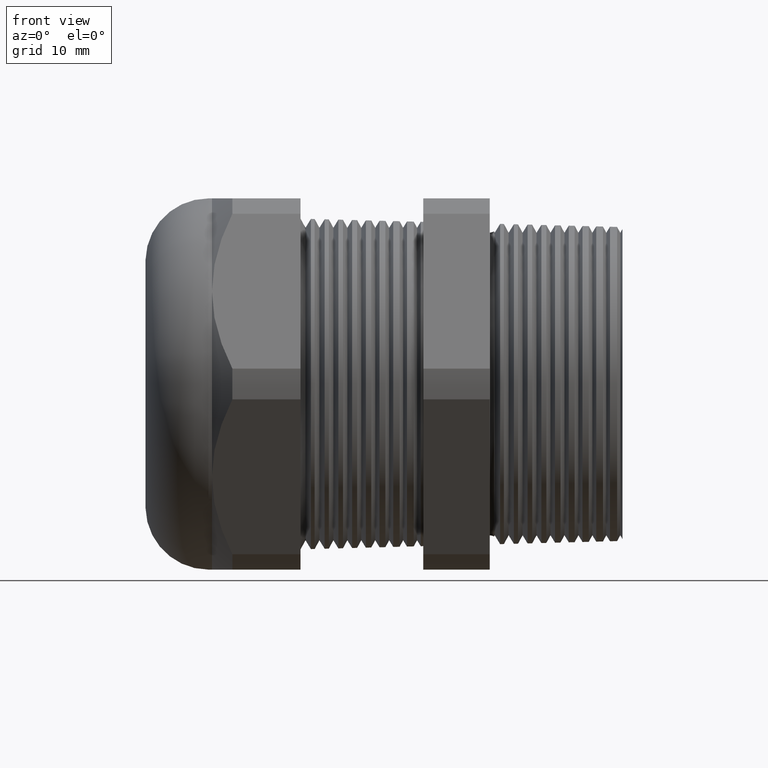
[diagram: clean part render]
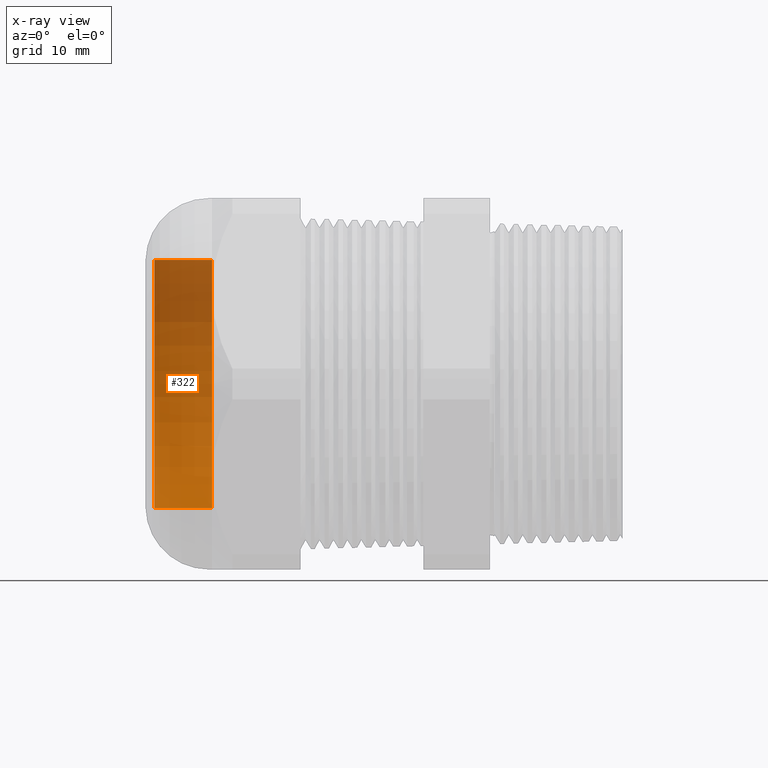
[diagram: x-ray — body ghosted, one internal face saturated and labeled with its STEP entity id]
A machine part, front view, then the same camera in x-ray: the body is ghosted and one INTERNAL B-rep face — a face not visible from any outside direction — is saturated and labeled: STEP entity #322.
In plain terms, the highlighted cylindrical surface (partial cylindrical patch) has radius 14.0017 mm, axis along (1, 0, 0).
Its self-contained STEP definition (entity closure, byte-faithful):
#204 = EDGE_CURVE ( 'NONE', #257, #279, #1247, .T. ) ;
#241 = EDGE_LOOP ( 'NONE', ( #242, #243, #246, #280 ) ) ;
#242 = ORIENTED_EDGE ( 'NONE', *, *, #256, .T. ) ;
#243 = ORIENTED_EDGE ( 'NONE', *, *, #244, .T. ) ;
#244 = EDGE_CURVE ( 'NONE', #254, #245, #1327, .T. ) ;
#245 = VERTEX_POINT ( 'NONE', #1319 ) ;
#246 = ORIENTED_EDGE ( 'NONE', *, *, #278, .F. ) ;
#254 = VERTEX_POINT ( 'NONE', #1359 ) ;
#256 = EDGE_CURVE ( 'NONE', #257, #254, #1358, .T. ) ;
#257 = VERTEX_POINT ( 'NONE', #1353 ) ;
#278 = EDGE_CURVE ( 'NONE', #279, #245, #1380, .T. ) ;
#279 = VERTEX_POINT ( 'NONE', #1375 ) ;
#280 = ORIENTED_EDGE ( 'NONE', *, *, #204, .F. ) ;
#322 = ADVANCED_FACE ( 'NONE', ( #1424 ), #1487, .T. ) ;
#1244 = DIRECTION ( 'NONE',  ( 1.000000000000000000, 0.0000000000000000000, 0.0000000000000000000 ) ) ;
#1245 = VECTOR ( 'NONE', #1244, 39.37007874015748100 ) ;
#1246 = CARTESIAN_POINT ( 'NONE',  ( 0.0000000000000000000, 0.0000000000000000000, -0.5512500000000000200 ) ) ;
#1247 = LINE ( 'NONE', #1246, #1245 ) ;
#1319 = CARTESIAN_POINT ( 'NONE',  ( -1.544724409448818800, 6.750865480299784700E-017, 0.5512500000000000200 ) ) ;
#1320 = DIRECTION ( 'NONE',  ( 1.000000000000000000, 0.0000000000000000000, 0.0000000000000000000 ) ) ;
#1321 = VECTOR ( 'NONE', #1320, 39.37007874015748100 ) ;
#1322 = CARTESIAN_POINT ( 'NONE',  ( 0.0000000000000000000, 6.750865480299784700E-017, 0.5512500000000000200 ) ) ;
#1327 = LINE ( 'NONE', #1322, #1321 ) ;
#1353 = CARTESIAN_POINT ( 'NONE',  ( -1.800999999999999900, 0.0000000000000000000, -0.5512500000000000200 ) ) ;
#1354 = DIRECTION ( 'NONE',  ( 0.0000000000000000000, 0.0000000000000000000, -1.000000000000000000 ) ) ;
#1355 = DIRECTION ( 'NONE',  ( 1.000000000000000000, 0.0000000000000000000, 0.0000000000000000000 ) ) ;
#1356 = CARTESIAN_POINT ( 'NONE',  ( -1.800999999999999900, 0.0000000000000000000, 0.0000000000000000000 ) ) ;
#1357 = AXIS2_PLACEMENT_3D ( 'NONE', #1356, #1355, #1354 ) ;
#1358 = CIRCLE ( 'NONE', #1357, 0.5512500000000000200 ) ;
#1359 = CARTESIAN_POINT ( 'NONE',  ( -1.800999999999999900, 6.750865480299784700E-017, 0.5512500000000000200 ) ) ;
#1375 = CARTESIAN_POINT ( 'NONE',  ( -1.544724409448818800, 0.0000000000000000000, -0.5512500000000000200 ) ) ;
#1376 = DIRECTION ( 'NONE',  ( 0.0000000000000000000, 0.0000000000000000000, -1.000000000000000000 ) ) ;
#1377 = DIRECTION ( 'NONE',  ( 1.000000000000000000, 0.0000000000000000000, 0.0000000000000000000 ) ) ;
#1378 = CARTESIAN_POINT ( 'NONE',  ( -1.544724409448818800, 0.0000000000000000000, 0.0000000000000000000 ) ) ;
#1379 = AXIS2_PLACEMENT_3D ( 'NONE', #1378, #1377, #1376 ) ;
#1380 = CIRCLE ( 'NONE', #1379, 0.5512500000000000200 ) ;
#1424 = FACE_OUTER_BOUND ( 'NONE', #241, .T. ) ;
#1483 = DIRECTION ( 'NONE',  ( 0.0000000000000000000, 0.0000000000000000000, -1.000000000000000000 ) ) ;
#1484 = DIRECTION ( 'NONE',  ( 1.000000000000000000, 0.0000000000000000000, 0.0000000000000000000 ) ) ;
#1485 = CARTESIAN_POINT ( 'NONE',  ( 0.0000000000000000000, 0.0000000000000000000, 0.0000000000000000000 ) ) ;
#1486 = AXIS2_PLACEMENT_3D ( 'NONE', #1485, #1484, #1483 ) ;
#1487 = CYLINDRICAL_SURFACE ( 'NONE', #1486, 0.5512500000000000200 ) ;